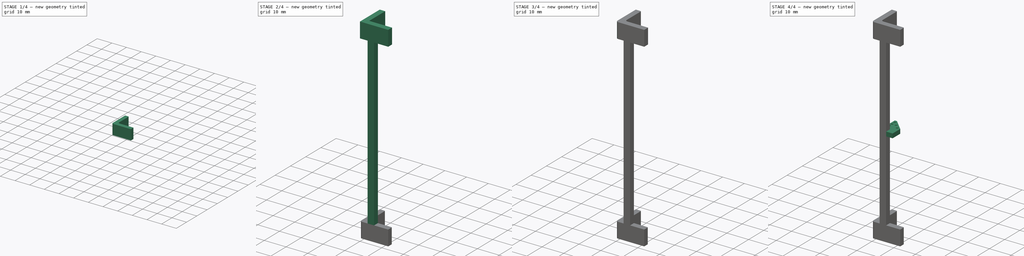
[diagram: build sequence overview — one tinted view per stage of 4, left to right]
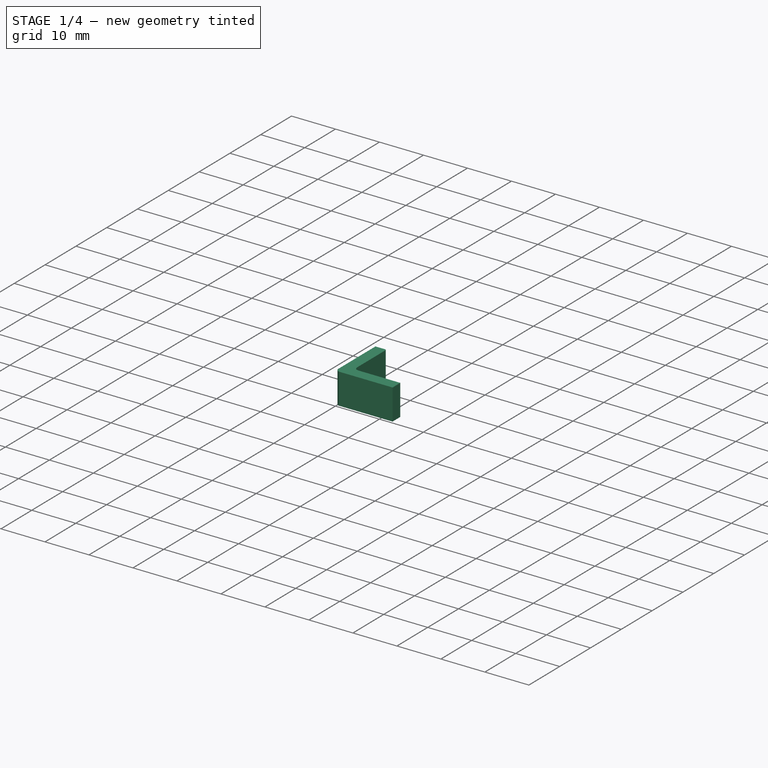
[diagram: stage 1 of 4 — iso view after this stage's code; geometry added in this stage tinted green]
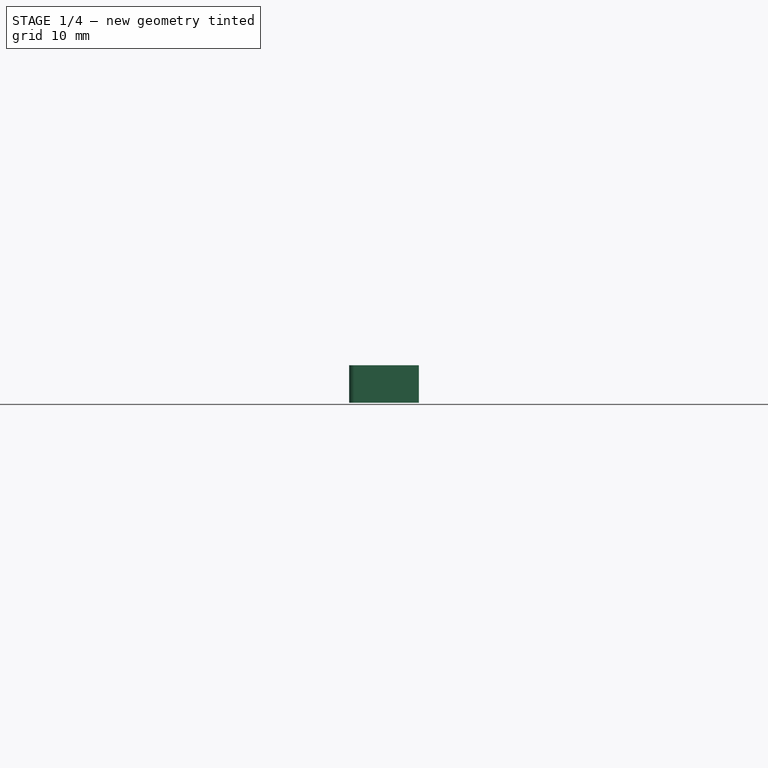
[diagram: stage 1 of 4 — front view after this stage's code; geometry added in this stage tinted green]
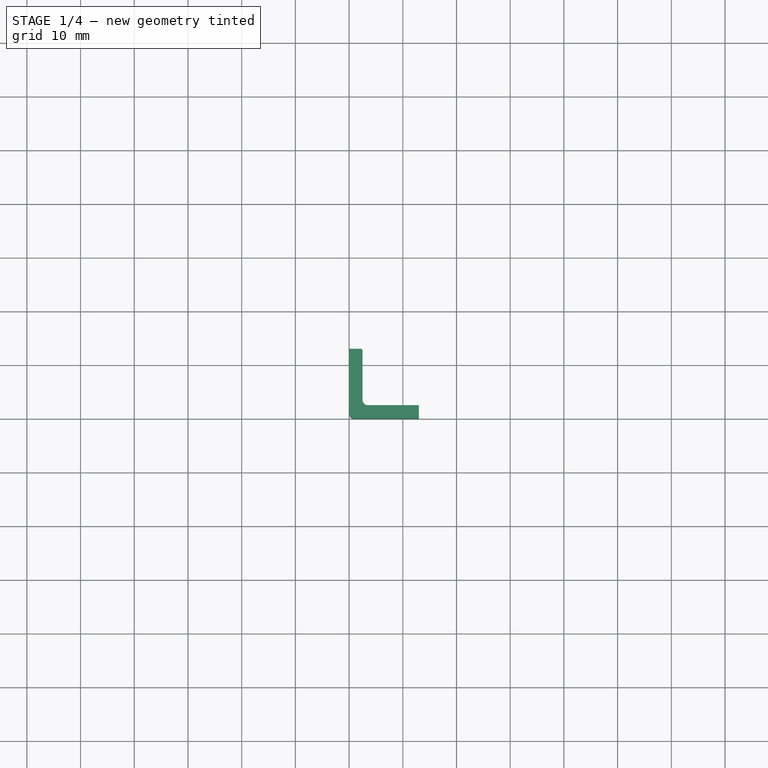
[diagram: stage 1 of 4 — top view after this stage's code; geometry added in this stage tinted green]
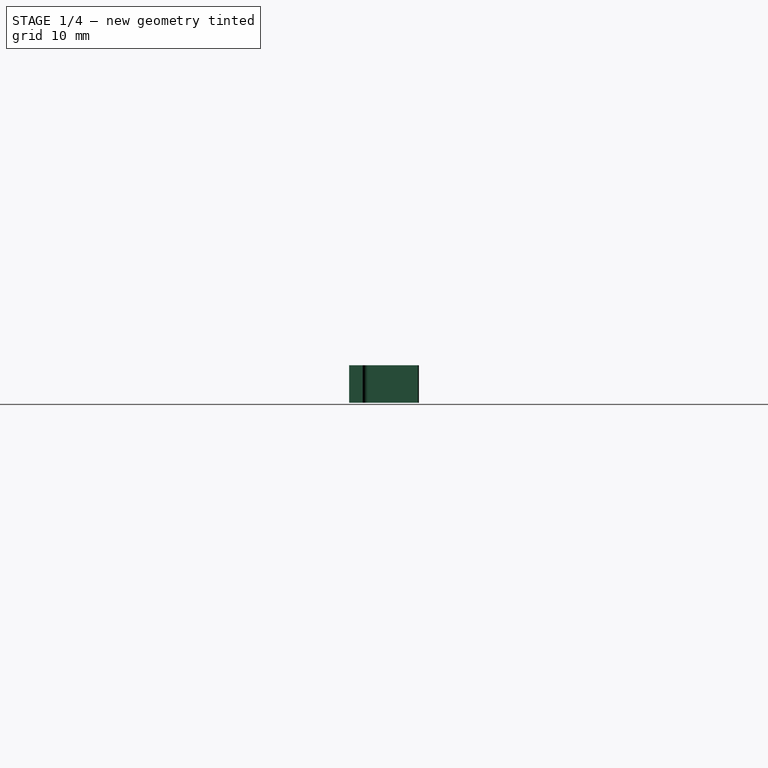
[diagram: stage 1 of 4 — right view after this stage's code; geometry added in this stage tinted green]
FCSTD DOCUMENT  (FreeCAD 0.16R6707 (Git))
Label: SupportMontantServo
License: All rights reserved
LicenseURL: http://en.wikipedia.org/wiki/All_rights_reserved
objects: Sketcher::SketchObject×5, PartDesign::Chamfer×5, PartDesign::Pad×4, PartDesign::Fillet×4, PartDesign::Pocket×1
note: 24 computed .brp shape members not serialized (recipe doc carries the construction recipe); baked Part::Feature solids carry a one-line shape summary decoded from their .brp

FEATURE [Sketcher::SketchObject] Sketch
  sketch-geometry (6):
    g0: LineSegment StartX=0 StartY=0 StartZ=0 EndX=0 EndY=13 EndZ=0
    g1: LineSegment StartX=0 StartY=0 StartZ=0 EndX=13 EndY=0 EndZ=0
    g2: LineSegment StartX=2.5 StartY=13 StartZ=0 EndX=2.5 EndY=2.5 EndZ=0
    g3: LineSegment StartX=2.5 StartY=2.5 StartZ=0 EndX=13 EndY=2.5 EndZ=0
    g4: LineSegment StartX=13 StartY=2.5 StartZ=0 EndX=13 EndY=0 EndZ=0
    g5: LineSegment StartX=0 StartY=13 StartZ=0 EndX=2.5 EndY=13 EndZ=0
  constraints (17):
    c: Coincident(g0,g-1)
    c: Vertical(g0)
    c: Coincident(g1,g-1)
    c: Vertical(g2)
    c: Coincident(g3,g2)
    c: Horizontal(g3)
    c: Coincident(g4,g3)
    c: Coincident(g5,g0)
    c: Coincident(g2,g5)
    c: Coincident(g1,g4)
    c: Horizontal(g1)
    c: Vertical(g4)
    c: Horizontal(g5)
    c: DistanceY(g0,g0) = 13
    c: DistanceX(g5,g5) = 2.5
    c: DistanceX(g1,g1) = 13
    c: DistanceY(g4,g4) = 2.5
FEATURE [PartDesign::Pad] Pad
  Length = 7
  Length2 = 100
  Sketch = -> Sketch
  Type = 0
FEATURE [PartDesign::Fillet] Fillet
  Base = -> Pad [Edge8]
  Radius = 1
FEATURE [PartDesign::Fillet] Fillet001
  Base = -> Fillet [Edge20]
  Radius = 1
FEATURE [PartDesign::Chamfer] Chamfer
  Base = -> Fillet001 [Edge14]
  Size = 0.2
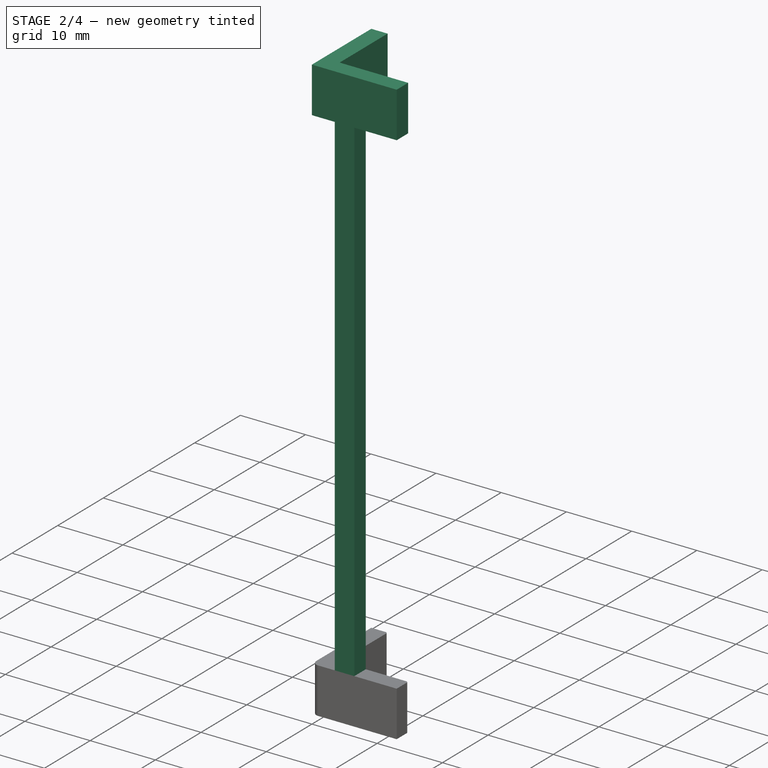
[diagram: stage 2 of 4 — iso view after this stage's code; geometry added in this stage tinted green]
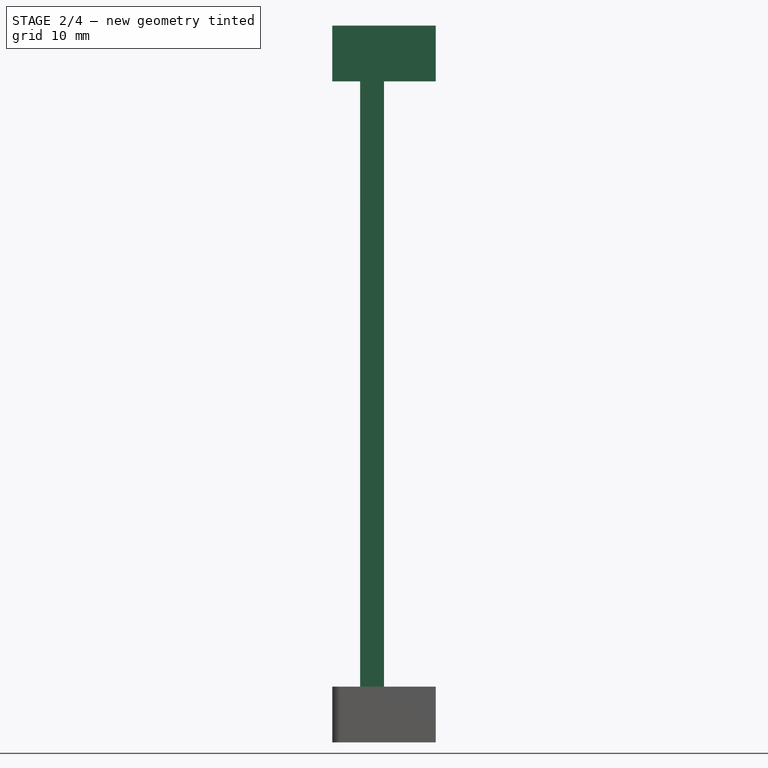
[diagram: stage 2 of 4 — front view after this stage's code; geometry added in this stage tinted green]
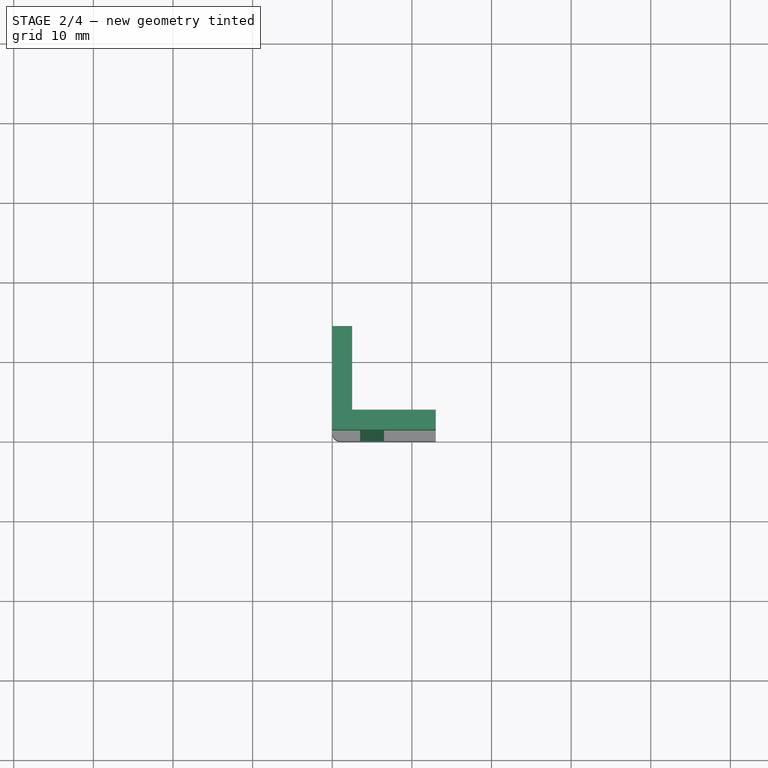
[diagram: stage 2 of 4 — top view after this stage's code; geometry added in this stage tinted green]
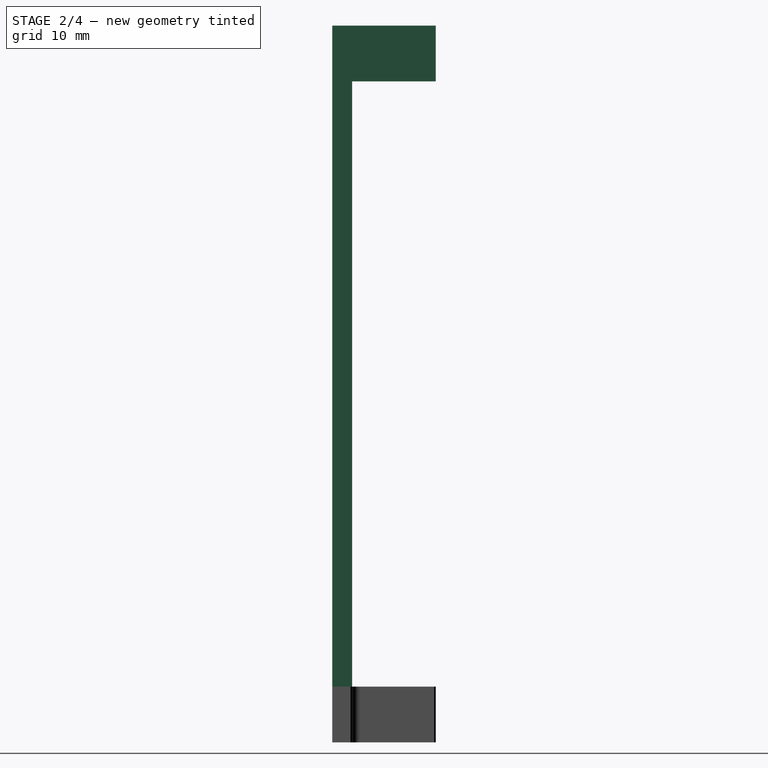
[diagram: stage 2 of 4 — right view after this stage's code; geometry added in this stage tinted green]
FEATURE [PartDesign::Chamfer] Chamfer001
  Base = -> Chamfer [Edge25]
  Size = 0.2
FEATURE [Sketcher::SketchObject] Sketch001
  ExternalGeometry = -> [Chamfer001]
  Placement = pos=(0,0,7) rot=(0,0,1;0rad)
  Support = -> Chamfer001 [Face12]
  sketch-geometry (4):
    g0: LineSegment StartX=3.5 StartY=2.5 StartZ=0 EndX=6.5 EndY=2.5 EndZ=0
    g1: LineSegment StartX=6.5 StartY=2.5 StartZ=0 EndX=6.5 EndY=0 EndZ=0
    g2: LineSegment StartX=6.5 StartY=0 StartZ=0 EndX=3.5 EndY=0 EndZ=0
    g3: LineSegment StartX=3.5 StartY=0 StartZ=0 EndX=3.5 EndY=2.5 EndZ=0
  constraints (11):
    c: Coincident(g0,g1)
    c: Coincident(g1,g2)
    c: Coincident(g2,g3)
    c: Coincident(g3,g0)
    c: Horizontal(g0)
    c: Horizontal(g2)
    c: Vertical(g1)
    c: Vertical(g3)
    c: PointOnObject(g1,g-1)
    c: Coincident(g0,g-3)
    c: DistanceX(g0,g0) = 3
FEATURE [PartDesign::Pad] Pad001
  Length = 76
  Length2 = 100
  Sketch = -> Sketch001
  Type = 0
FEATURE [Sketcher::SketchObject] Sketch002
  Placement = pos=(0,0,83) rot=(0,0,1;0rad)
  Support = -> Pad001 [Face1]
  sketch-geometry (6):
    g0: LineSegment StartX=2.5 StartY=2.5 StartZ=0 EndX=13 EndY=2.5 EndZ=0
    g1: LineSegment StartX=13 StartY=2.5 StartZ=0 EndX=13 EndY=0 EndZ=0
    g2: LineSegment StartX=13 StartY=0 StartZ=0 EndX=0 EndY=0 EndZ=0
    g3: LineSegment StartX=0 StartY=0 StartZ=0 EndX=0 EndY=13 EndZ=0
    g4: LineSegment StartX=0 StartY=13 StartZ=0 EndX=2.5 EndY=13 EndZ=0
    g5: LineSegment StartX=2.5 StartY=13 StartZ=0 EndX=2.5 EndY=2.5 EndZ=0
  constraints (19):
    c: Horizontal(g0)
    c: Coincident(g1,g0)
    c: Coincident(g2,g1)
    c: PointOnObject(g2,g-1)
    c: Horizontal(g2)
    c: Coincident(g3,g2)
    c: Vertical(g3)
    c: PointOnObject(g4,g3)
    c: Coincident(g5,g4)
    c: Vertical(g5)
    c: Coincident(g0,g5)
    c: Coincident(g3,g4)
    c: Horizontal(g4)
    c: Coincident(g2,g-1)
    c: Vertical(g1)
    c: DistanceY(g1,g1) = 2.5
    c: DistanceX(g4,g4) = 2.5
    c: DistanceY(g3,g3) = 13
    c: DistanceX(g2,g2) = 13
FEATURE [PartDesign::Pad] Pad002
  Length = 7
  Length2 = 100
  Sketch = -> Sketch002
  Type = 0
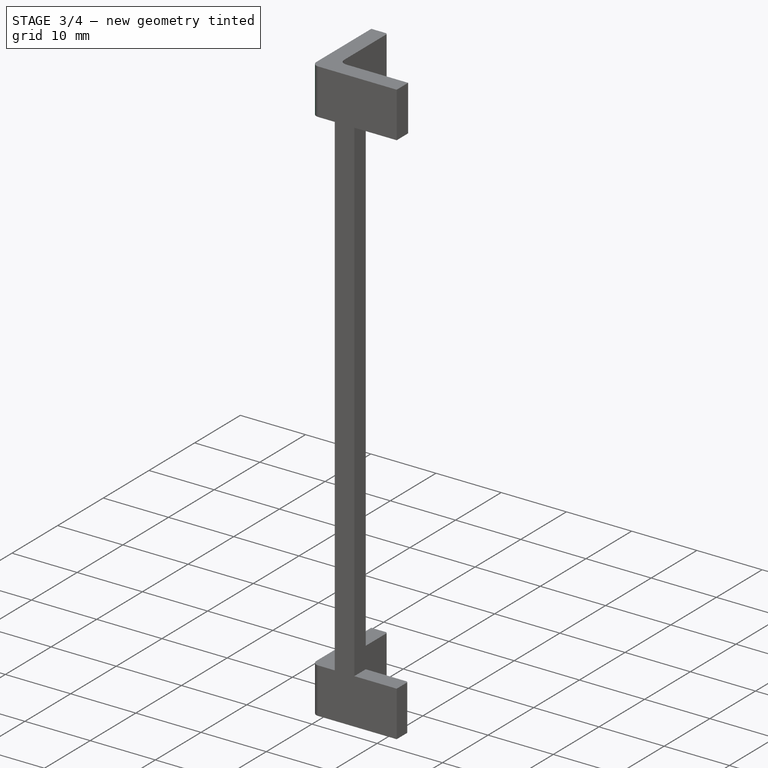
[diagram: stage 3 of 4 — iso view after this stage's code; geometry added in this stage tinted green]
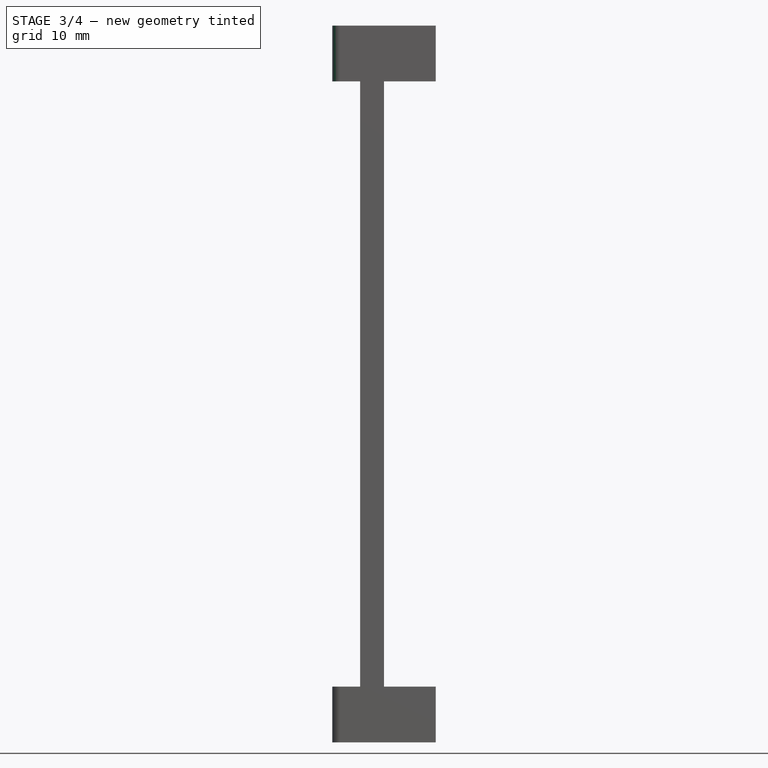
[diagram: stage 3 of 4 — front view after this stage's code; geometry added in this stage tinted green]
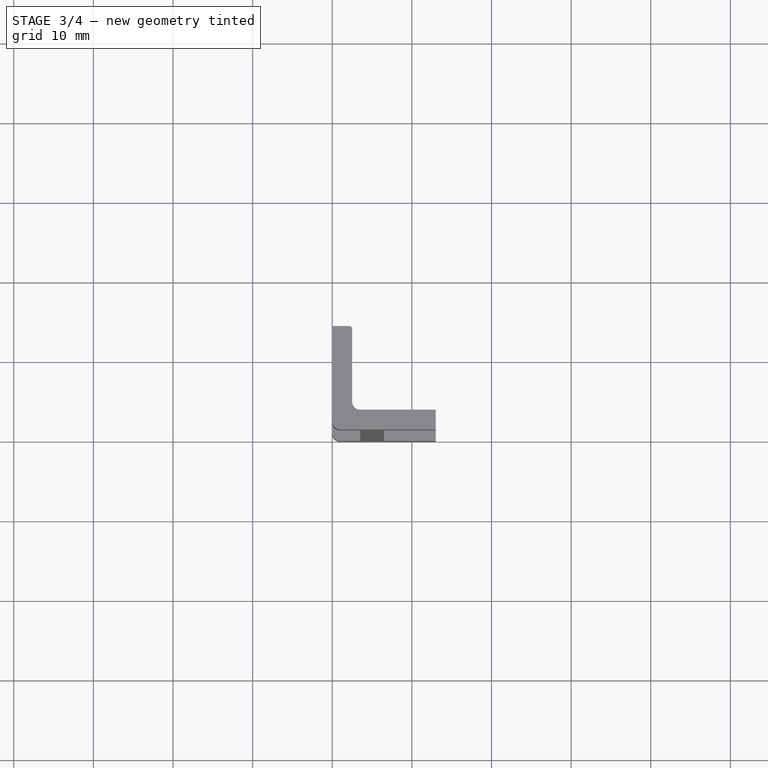
[diagram: stage 3 of 4 — top view after this stage's code; geometry added in this stage tinted green]
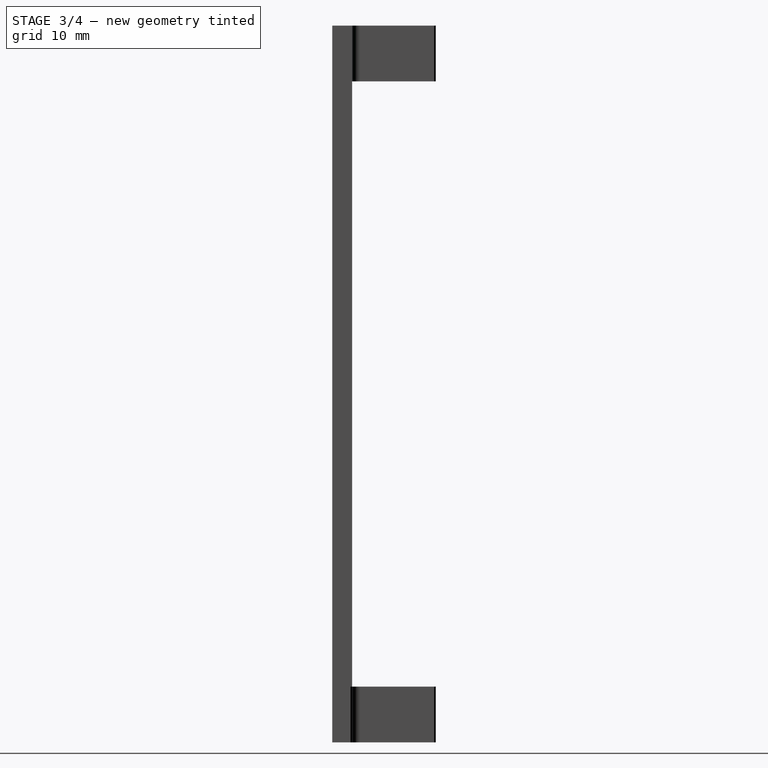
[diagram: stage 3 of 4 — right view after this stage's code; geometry added in this stage tinted green]
FEATURE [PartDesign::Fillet] Fillet002
  Base = -> Pad002 [Edge62]
  Radius = 1
FEATURE [PartDesign::Fillet] Fillet003
  Base = -> Fillet002 [Edge20]
  Radius = 1
FEATURE [PartDesign::Chamfer] Chamfer002
  Base = -> Fillet003 [Edge9]
  Size = 0.2
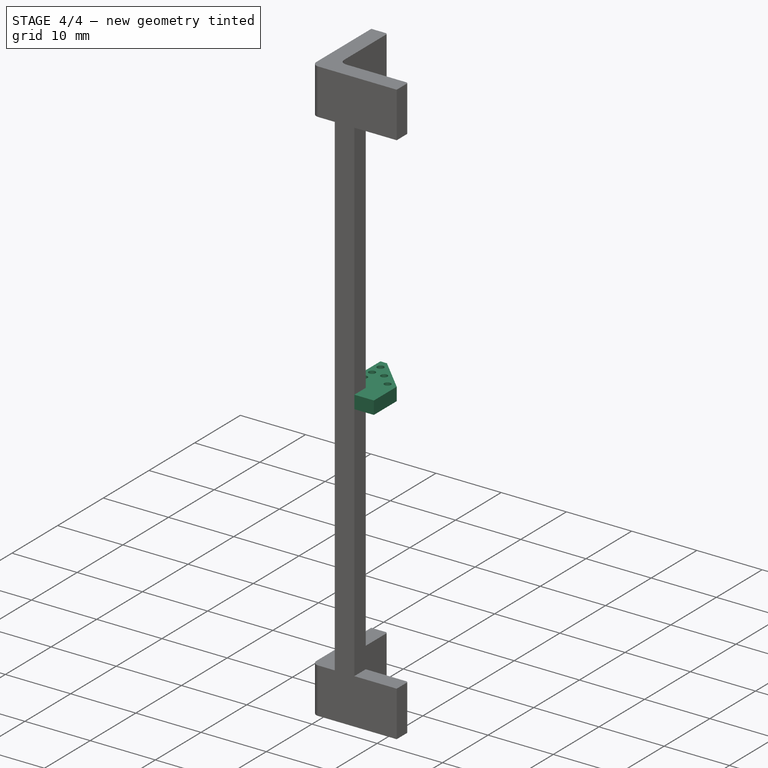
[diagram: stage 4 of 4 — iso view after this stage's code; geometry added in this stage tinted green]
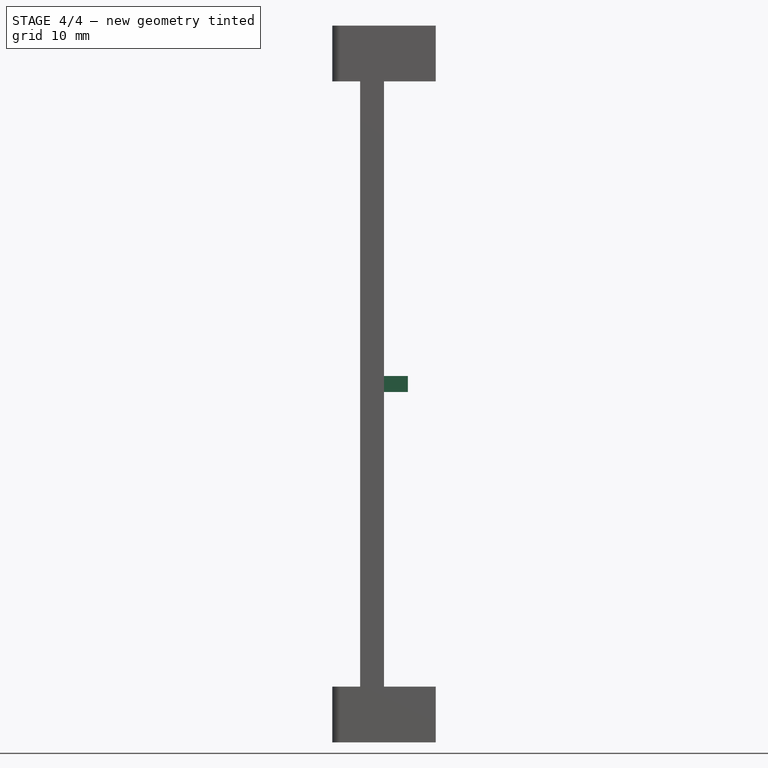
[diagram: stage 4 of 4 — front view after this stage's code; geometry added in this stage tinted green]
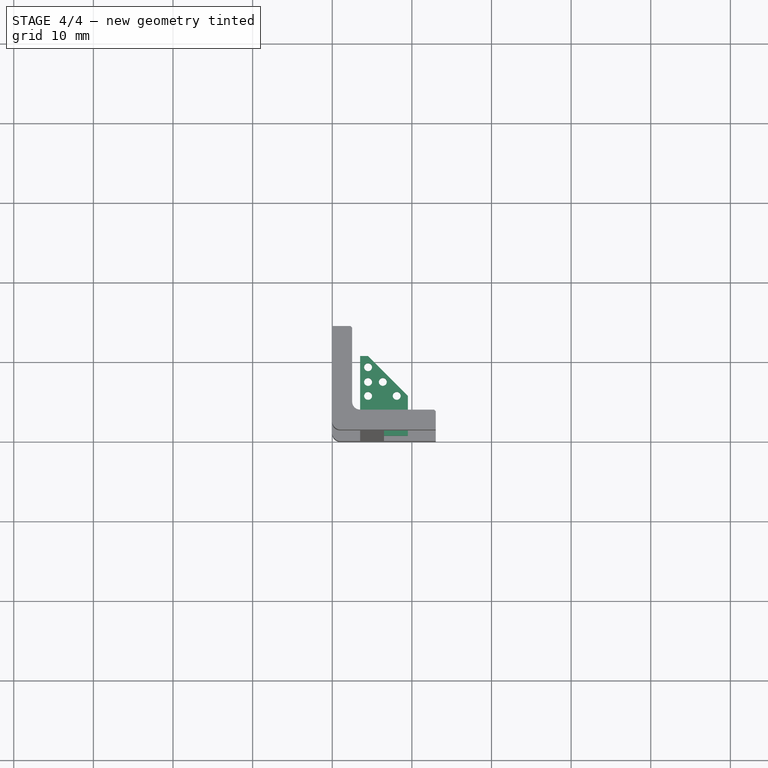
[diagram: stage 4 of 4 — top view after this stage's code; geometry added in this stage tinted green]
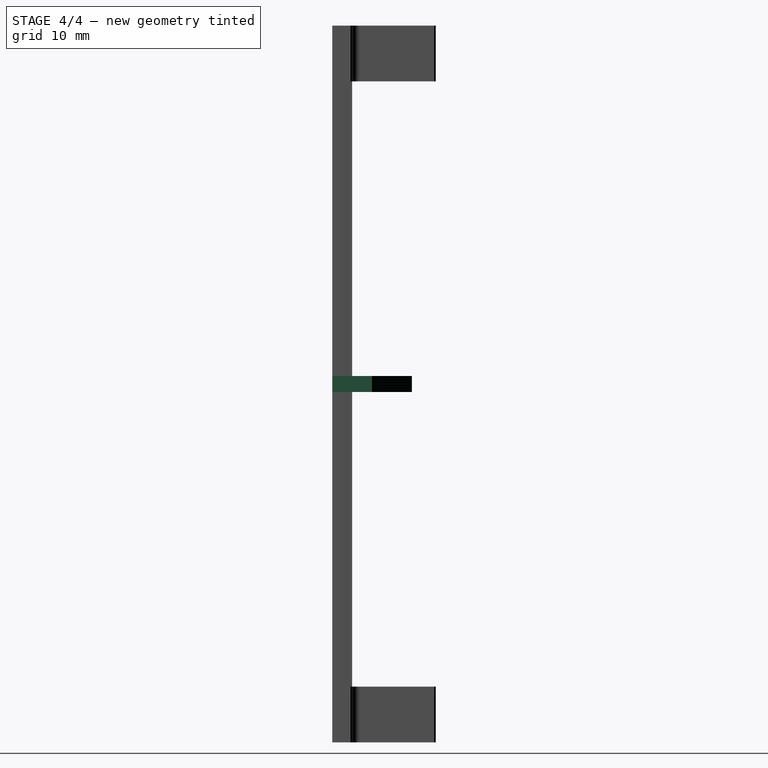
[diagram: stage 4 of 4 — right view after this stage's code; geometry added in this stage tinted green]
FEATURE [PartDesign::Chamfer] Chamfer003
  Base = -> Chamfer002 [Edge31]
  Size = 0.2
FEATURE [Sketcher::SketchObject] Sketch003
  ExternalGeometry = -> [Chamfer003]
  Placement = pos=(6.5,0,0) rot=(0.57735,0.57735,0.57735;2.0944rad)
  Support = -> Chamfer003 [Face16]
  sketch-geometry (4):
    g0: LineSegment StartX=0 StartY=46 StartZ=0 EndX=10 EndY=46 EndZ=0
    g1: LineSegment StartX=0 StartY=44 StartZ=0 EndX=10 EndY=44 EndZ=0
    g2: LineSegment StartX=0 StartY=46 StartZ=0 EndX=0 EndY=44 EndZ=0
    g3: LineSegment StartX=10 StartY=46 StartZ=0 EndX=10 EndY=44 EndZ=0
  constraints (12):
    c: PointOnObject(g0,g-2)
    c: Horizontal(g0)
    c: PointOnObject(g1,g-2)
    c: Horizontal(g1)
    c: Vertical(g3)
    c: Coincident(g0,g3)
    c: Coincident(g1,g3)
    c: Coincident(g0,g2)
    c: Coincident(g1,g2)
    c: DistanceY(g3,g3) = 2
    c: DistanceY(g0,g-4) = 37
    c: DistanceX(g0,g0) = 10
FEATURE [PartDesign::Pad] Pad003
  Length = 6
  Length2 = 100
  Midplane = true
  Sketch = -> Sketch003
  Type = 0
FEATURE [PartDesign::Chamfer] Chamfer004
  Base = -> Pad003 [Edge3]
  Size = 5
FEATURE [Sketcher::SketchObject] Sketch004
  ExternalGeometry = -> [Chamfer004]
  Placement = pos=(0,0,46) rot=(0,0,1;0rad)
  Support = -> Chamfer004 [Face2]
  sketch-geometry (10):
    g0: Circle CenterX=4.5 CenterY=8.6 CenterZ=0 NormalX=0 NormalY=0 NormalZ=1 Radius=0.5
    g1: Circle CenterX=4.5 CenterY=6.75 CenterZ=0 NormalX=0 NormalY=0 NormalZ=1 Radius=0.5
    g2: Circle CenterX=4.5 CenterY=5 CenterZ=0 NormalX=0 NormalY=0 NormalZ=1 Radius=0.5
    g3: Circle CenterX=6.35 CenterY=6.75 CenterZ=0 NormalX=0 NormalY=0 NormalZ=1 Radius=0.5
    g4: Circle CenterX=8.1 CenterY=5 CenterZ=0 NormalX=0 NormalY=0 NormalZ=1 Radius=0.5
    g5: LineSegment [constr] StartX=4.5 StartY=5 StartZ=0 EndX=8.1 EndY=5 EndZ=0
    g6: LineSegment [constr] StartX=4.5 StartY=8.6 StartZ=0 EndX=4.5 EndY=5 EndZ=0
    g7: LineSegment [constr] StartX=4.5 StartY=8.6 StartZ=0 EndX=8.1 EndY=5 EndZ=0
    g8: LineSegment [constr] StartX=4.5 StartY=6.75 StartZ=0 EndX=6.35 EndY=6.75 EndZ=0
    g9: LineSegment [constr] StartX=8.1 StartY=5 StartZ=0 EndX=9.5 EndY=5 EndZ=0
  constraints (25):
    c: Horizontal(g5)
    c: Vertical(g6)
    c: Coincident(g5,g7)
    c: Coincident(g5,g6)
    c: Coincident(g6,g7)
    c: Coincident(g0,g6)
    c: PointOnObject(g1,g6)
    c: Coincident(g2,g5)
    c: Coincident(g4,g5)
    c: PointOnObject(g3,g7)
    c: Horizontal(g8)
    c: Coincident(g8,g3)
    c: Coincident(g8,g1)
    c: Parallel(g7,g-3)
    c: DistanceX(g-4,g0) = 1
    c: Coincident(g9,g4)
    c: Coincident(g9,g-3)
    c: Horizontal(g9)
    c: DistanceX(g9,g9) = 1.4
    c: Radius(g3) = 0.5
    c: Radius(g1) = 0.5
    c: Radius(g2) = 0.5
    c: Equal(g2,g0)
    c: Equal(g2,g4)
    c: DistanceY(g1,g0) = 1.85
FEATURE [PartDesign::Pocket] Pocket
  Length = 5
  Sketch = -> Sketch004
  Type = 1
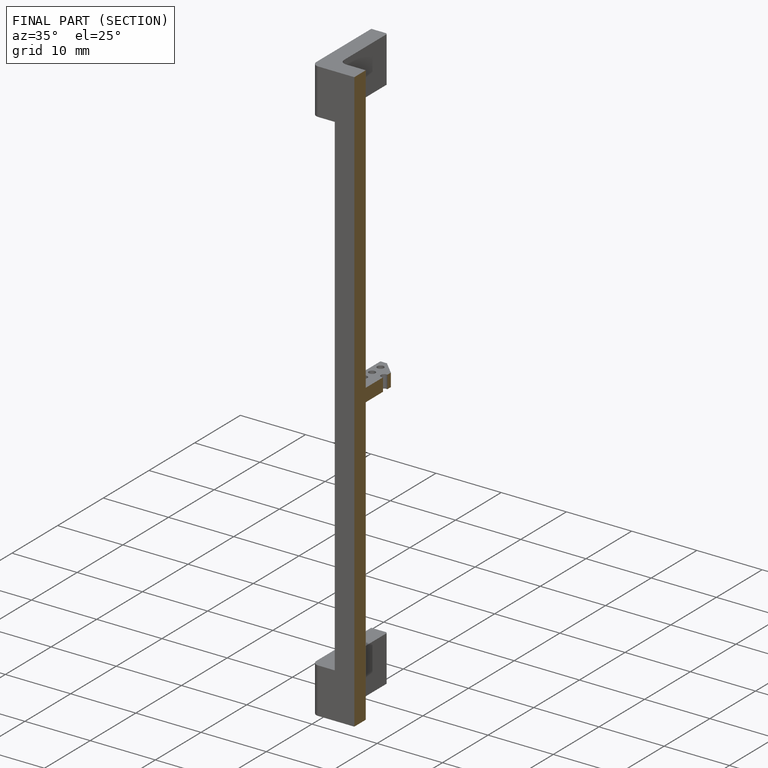
[diagram: finished part — half-section view (interior)]
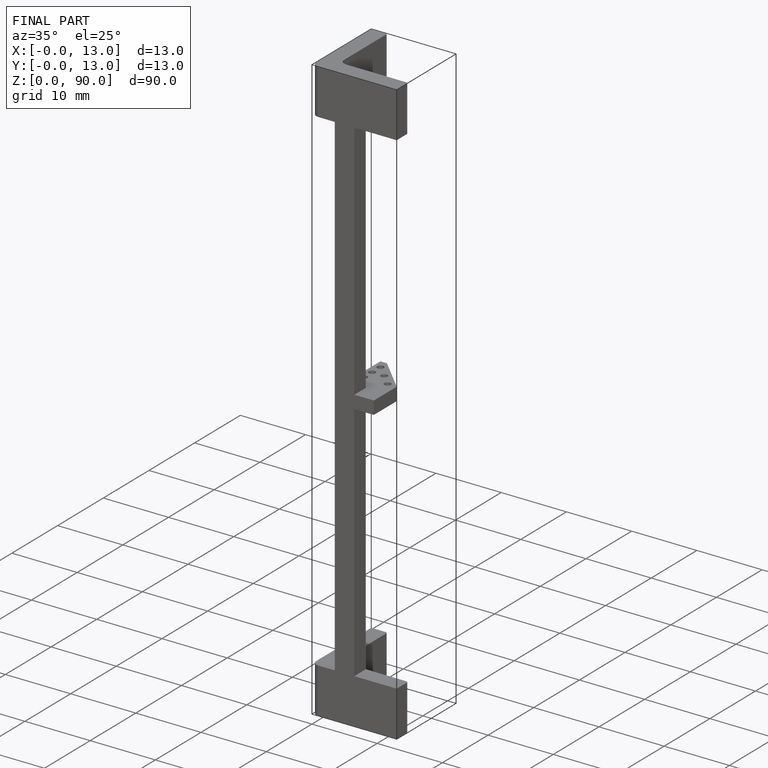
[diagram: finished part — iso view with bounding-box wireframe]
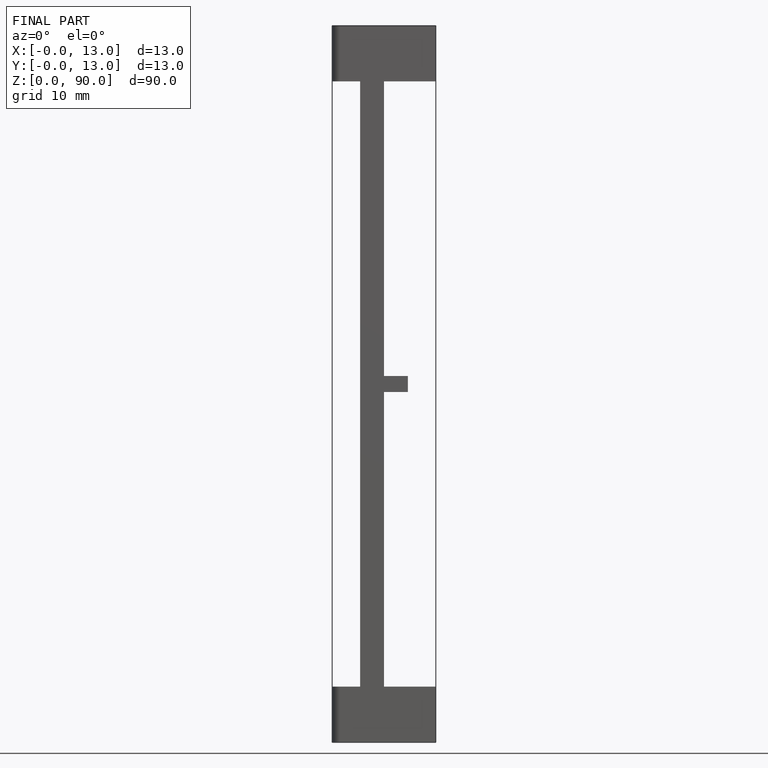
[diagram: finished part — front view with bounding-box wireframe]
